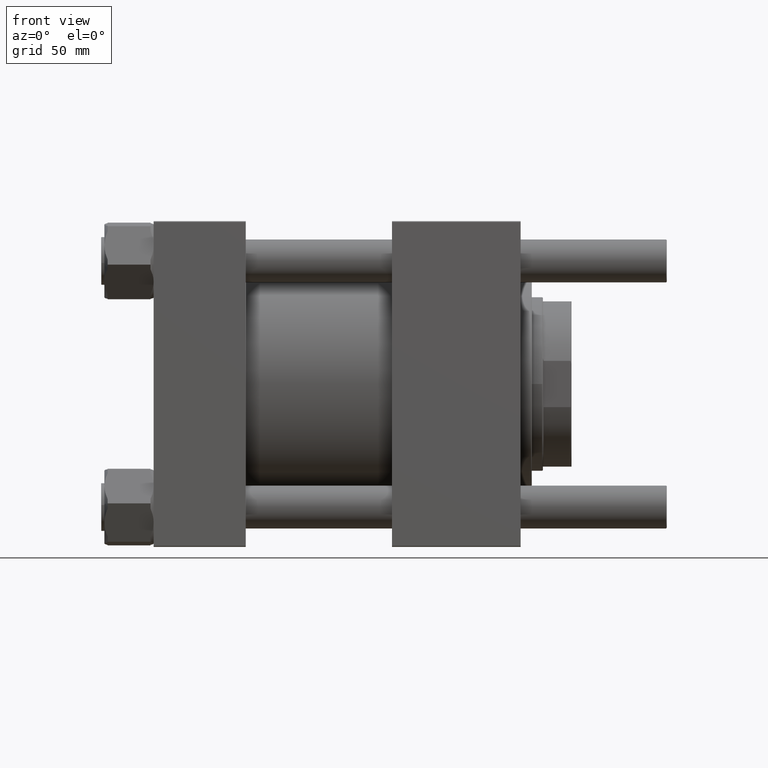
[diagram: clean part render]
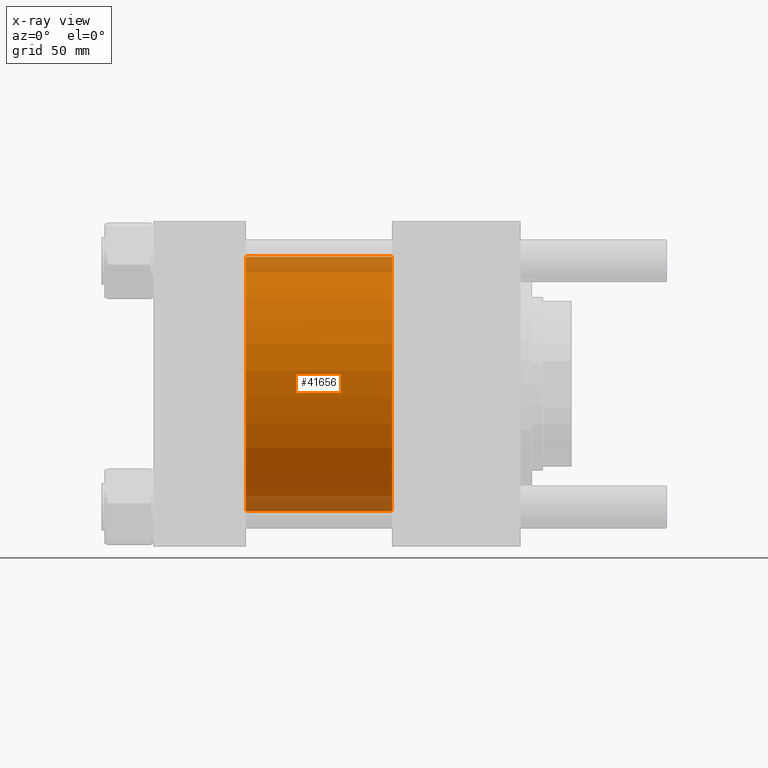
[diagram: x-ray — body ghosted, one internal face saturated and labeled with its STEP entity id]
A machine part, front view, then the same camera in x-ray: the body is ghosted and one INTERNAL B-rep face — a face not visible from any outside direction — is saturated and labeled: STEP entity #41656.
In plain terms, the highlighted cylindrical surface (partial cylindrical patch) has radius 80 mm, axis along (-1, -0, -0).
Its self-contained STEP definition (entity closure, byte-faithful):
#527 = CARTESIAN_POINT ( 'NONE',  ( 58.00000000000000000, 7.195089179213615410E-15, -80.00000000000000000 ) ) ;
#2629 = CARTESIAN_POINT ( 'NONE',  ( 150.0000000000000000, -2.602085213965210642E-15, 80.00000000000000000 ) ) ;
#3213 = LINE ( 'NONE', #2629, #30796 ) ;
#4052 = CARTESIAN_POINT ( 'NONE',  ( 150.0000000000000000, 7.195089179213615410E-15, -80.00000000000000000 ) ) ;
#4064 = EDGE_LOOP ( 'NONE', ( #42590, #41249, #54246, #12709 ) ) ;
#4398 = CARTESIAN_POINT ( 'NONE',  ( 58.00000000000000000, -2.602085213965210642E-15, 80.00000000000000000 ) ) ;
#5916 = CARTESIAN_POINT ( 'NONE',  ( 150.0000000000000000, -2.602085213965210642E-15, 0.000000000000000000 ) ) ;
#6148 = VERTEX_POINT ( 'NONE', #4052 ) ;
#6390 = DIRECTION ( 'NONE',  ( -1.000000000000000000, -0.000000000000000000, -0.000000000000000000 ) ) ;
#12709 = ORIENTED_EDGE ( 'NONE', *, *, #20644, .F. ) ;
#14287 = FACE_OUTER_BOUND ( 'NONE', #4064, .T. ) ;
#14845 = DIRECTION ( 'NONE',  ( 0.000000000000000000, 0.000000000000000000, 1.000000000000000000 ) ) ;
#17407 = CARTESIAN_POINT ( 'NONE',  ( 150.0000000000000000, 7.195089179213615410E-15, -80.00000000000000000 ) ) ;
#19918 = EDGE_CURVE ( 'NONE', #21676, #43400, #49249, .T. ) ;
#20644 = EDGE_CURVE ( 'NONE', #39087, #21676, #3213, .T. ) ;
#21676 = VERTEX_POINT ( 'NONE', #4398 ) ;
#23071 = DIRECTION ( 'NONE',  ( 1.000000000000000000, 0.000000000000000000, 0.000000000000000000 ) ) ;
#23915 = CARTESIAN_POINT ( 'NONE',  ( 58.00000000000000000, -2.602085213965210642E-15, 0.000000000000000000 ) ) ;
#27415 = DIRECTION ( 'NONE',  ( 0.000000000000000000, 0.000000000000000000, -1.000000000000000000 ) ) ;
#27609 = CARTESIAN_POINT ( 'NONE',  ( 150.0000000000000000, -2.602085213965210642E-15, 0.000000000000000000 ) ) ;
#28229 = CIRCLE ( 'NONE', #56846, 80.00000000000000000 ) ;
#29452 = AXIS2_PLACEMENT_3D ( 'NONE', #27609, #45250, #14845 ) ;
#30796 = VECTOR ( 'NONE', #6390, 1000.000000000000000 ) ;
#31667 = CYLINDRICAL_SURFACE ( 'NONE', #29452, 80.00000000000000000 ) ;
#32184 = EDGE_CURVE ( 'NONE', #39087, #6148, #28229, .T. ) ;
#39087 = VERTEX_POINT ( 'NONE', #51648 ) ;
#39141 = DIRECTION ( 'NONE',  ( -1.000000000000000000, -0.000000000000000000, -0.000000000000000000 ) ) ;
#41249 = ORIENTED_EDGE ( 'NONE', *, *, #56956, .T. ) ;
#41515 = DIRECTION ( 'NONE',  ( 0.000000000000000000, 0.000000000000000000, -1.000000000000000000 ) ) ;
#41656 = ADVANCED_FACE ( 'NONE', ( #14287 ), #31667, .F. ) ;
#42590 = ORIENTED_EDGE ( 'NONE', *, *, #32184, .T. ) ;
#43400 = VERTEX_POINT ( 'NONE', #527 ) ;
#44324 = LINE ( 'NONE', #17407, #55010 ) ;
#45250 = DIRECTION ( 'NONE',  ( -1.000000000000000000, -0.000000000000000000, -0.000000000000000000 ) ) ;
#49249 = CIRCLE ( 'NONE', #51075, 80.00000000000000000 ) ;
#51075 = AXIS2_PLACEMENT_3D ( 'NONE', #23915, #23071, #27415 ) ;
#51648 = CARTESIAN_POINT ( 'NONE',  ( 150.0000000000000000, -2.602085213965210642E-15, 80.00000000000000000 ) ) ;
#54246 = ORIENTED_EDGE ( 'NONE', *, *, #19918, .F. ) ;
#54520 = DIRECTION ( 'NONE',  ( 1.000000000000000000, 0.000000000000000000, 0.000000000000000000 ) ) ;
#55010 = VECTOR ( 'NONE', #39141, 1000.000000000000000 ) ;
#56846 = AXIS2_PLACEMENT_3D ( 'NONE', #5916, #54520, #41515 ) ;
#56956 = EDGE_CURVE ( 'NONE', #6148, #43400, #44324, .T. ) ;